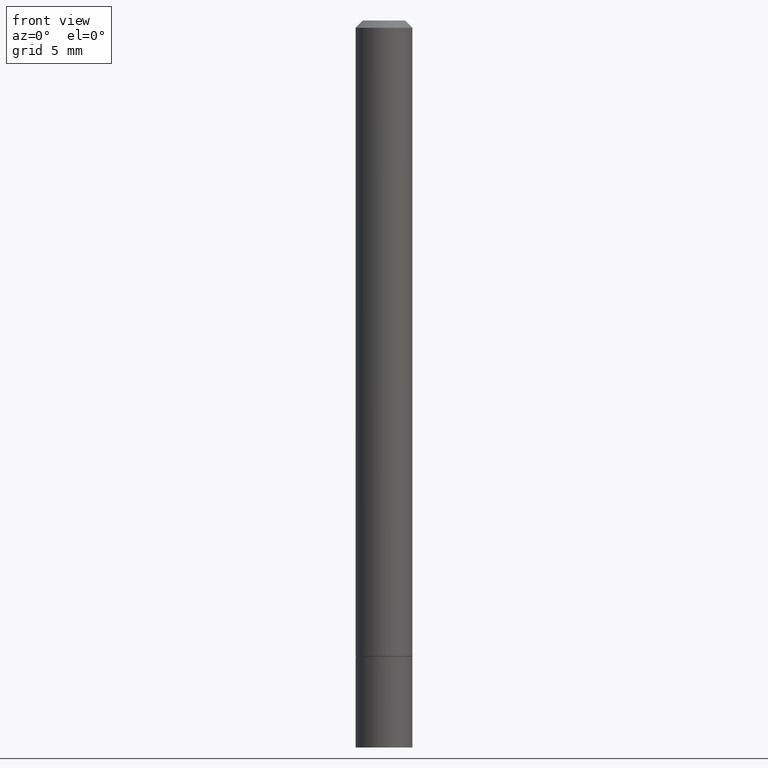
[diagram: clean part render]
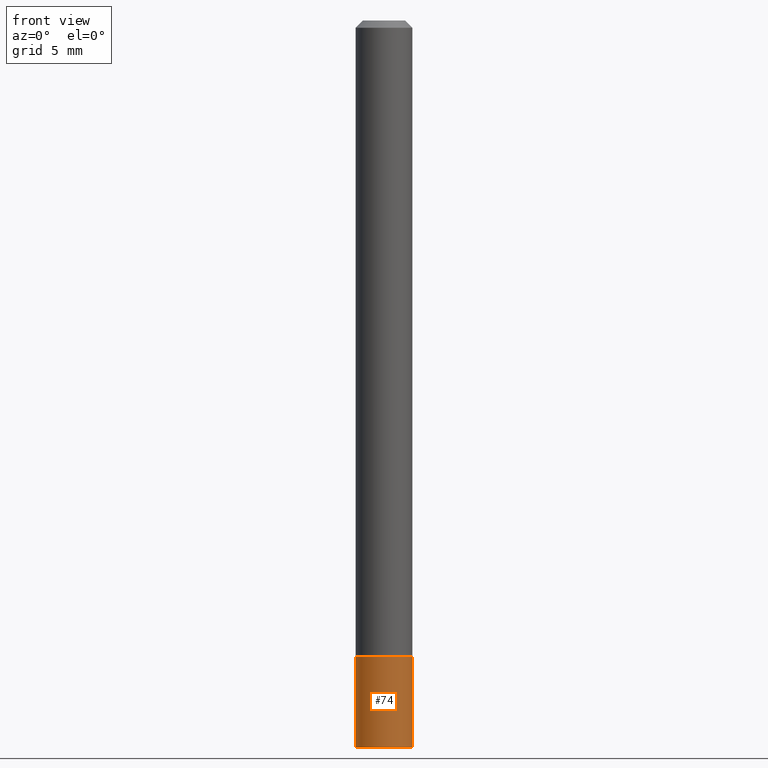
[diagram: same view with one face highlighted and labeled with its STEP entity id]
A machine part, front view. The second image highlights one B-rep face of the part: STEP entity #74.
In plain terms, the highlighted cylindrical surface (edge-blend (fillet) strip) has radius 1.9837 mm, axis along (-0, 0, 1).
Its self-contained STEP definition (entity closure, byte-faithful):
#8 = LINE ( 'NONE', #215, #91 ) ;
#12 = CIRCLE ( 'NONE', #228, 0.07810000000000000275 ) ;
#31 = VERTEX_POINT ( 'NONE', #121 ) ;
#37 = DIRECTION ( 'NONE',  ( -2.445468806185136877E-29, 3.491481338843145188E-15, 1.000000000000000000 ) ) ;
#54 = EDGE_CURVE ( 'NONE', #66, #135, #286, .T. ) ;
#66 = VERTEX_POINT ( 'NONE', #259 ) ;
#74 = ADVANCED_FACE ( 'NONE', ( #294 ), #384, .T. ) ;
#91 = VECTOR ( 'NONE', #37, 39.37007874015748143 ) ;
#97 = ORIENTED_EDGE ( 'NONE', *, *, #54, .F. ) ;
#109 = CARTESIAN_POINT ( 'NONE',  ( 4.890937612370273194E-29, -6.982962677686291165E-15, -2.000000000000000000 ) ) ;
#112 = DIRECTION ( 'NONE',  ( 1.000000000000000000, -6.982962677686266711E-15, 0.000000000000000000 ) ) ;
#121 = CARTESIAN_POINT ( 'NONE',  ( 0.07810000000000000275, -6.655461728102802107E-15, -1.750000000000000000 ) ) ;
#124 = EDGE_LOOP ( 'NONE', ( #97, #355, #204, #295 ) ) ;
#135 = VERTEX_POINT ( 'NONE', #255 ) ;
#140 = AXIS2_PLACEMENT_3D ( 'NONE', #285, #309, #143 ) ;
#143 = DIRECTION ( 'NONE',  ( 1.000000000000000000, -6.982962677686266711E-15, 0.000000000000000000 ) ) ;
#150 = EDGE_CURVE ( 'NONE', #267, #31, #8, .T. ) ;
#151 = VECTOR ( 'NONE', #264, 39.37007874015748143 ) ;
#185 = CARTESIAN_POINT ( 'NONE',  ( 0.07809999999999980846, -7.518767571312246590E-15, -2.000000000000000000 ) ) ;
#200 = DIRECTION ( 'NONE',  ( 1.000000000000000000, -6.982962677686266711E-15, 4.876176775795935232E-29 ) ) ;
#204 = ORIENTED_EDGE ( 'NONE', *, *, #150, .T. ) ;
#207 = CARTESIAN_POINT ( 'NONE',  ( 0.000000000000000000, 0.000000000000000000, 0.000000000000000000 ) ) ;
#215 = CARTESIAN_POINT ( 'NONE',  ( 0.07810000000000000275, -5.453693851272974364E-16, 3.808294061896625703E-30 ) ) ;
#228 = AXIS2_PLACEMENT_3D ( 'NONE', #109, #291, #112 ) ;
#255 = CARTESIAN_POINT ( 'NONE',  ( -0.07810000000000000275, -5.991593633702259259E-15, -1.750000000000000000 ) ) ;
#259 = CARTESIAN_POINT ( 'NONE',  ( -0.07809999999999980846, -6.437593292558994518E-15, -2.000000000000000000 ) ) ;
#260 = AXIS2_PLACEMENT_3D ( 'NONE', #207, #341, #200 ) ;
#264 = DIRECTION ( 'NONE',  ( -2.445468806185136877E-29, 3.491481338843145188E-15, 1.000000000000000000 ) ) ;
#267 = VERTEX_POINT ( 'NONE', #185 ) ;
#285 = CARTESIAN_POINT ( 'NONE',  ( 4.279570410823988484E-29, -6.110092342975504671E-15, -1.750000000000000000 ) ) ;
#286 = LINE ( 'NONE', #289, #151 ) ;
#289 = CARTESIAN_POINT ( 'NONE',  ( -0.07810000000000000275, 5.549338766286382647E-16, -3.841688305489081275E-30 ) ) ;
#290 = CIRCLE ( 'NONE', #140, 0.07810000000000000275 ) ;
#291 = DIRECTION ( 'NONE',  ( -2.445468806185136597E-29, 3.491481338843145583E-15, 1.000000000000000000 ) ) ;
#294 = FACE_OUTER_BOUND ( 'NONE', #124, .T. ) ;
#295 = ORIENTED_EDGE ( 'NONE', *, *, #308, .F. ) ;
#308 = EDGE_CURVE ( 'NONE', #135, #31, #290, .T. ) ;
#309 = DIRECTION ( 'NONE',  ( -2.445468806185136597E-29, 3.491481338843145583E-15, 1.000000000000000000 ) ) ;
#341 = DIRECTION ( 'NONE',  ( -2.445468806185136597E-29, 3.491481338843145583E-15, 1.000000000000000000 ) ) ;
#355 = ORIENTED_EDGE ( 'NONE', *, *, #367, .T. ) ;
#367 = EDGE_CURVE ( 'NONE', #66, #267, #12, .T. ) ;
#384 = CYLINDRICAL_SURFACE ( 'NONE', #260, 0.07810000000000000275 ) ;